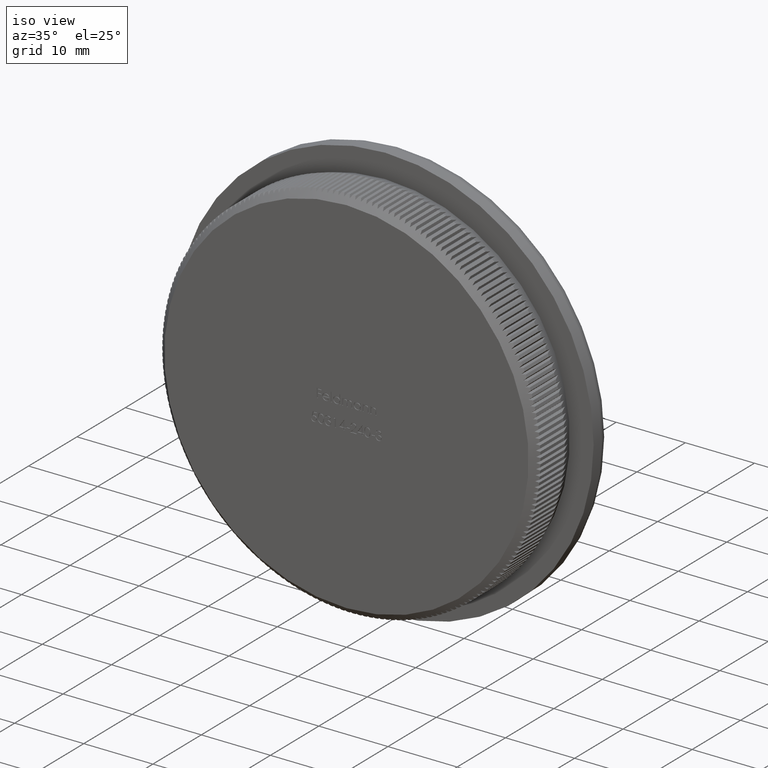
[diagram: clean part render]
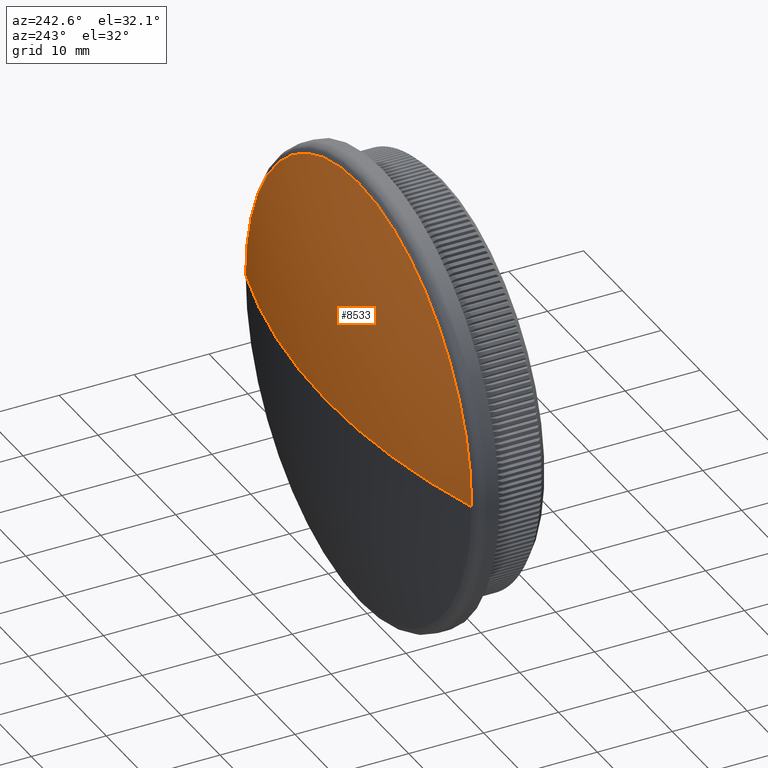
[diagram: tour spotlight — one face highlighted and labeled with its STEP entity id]
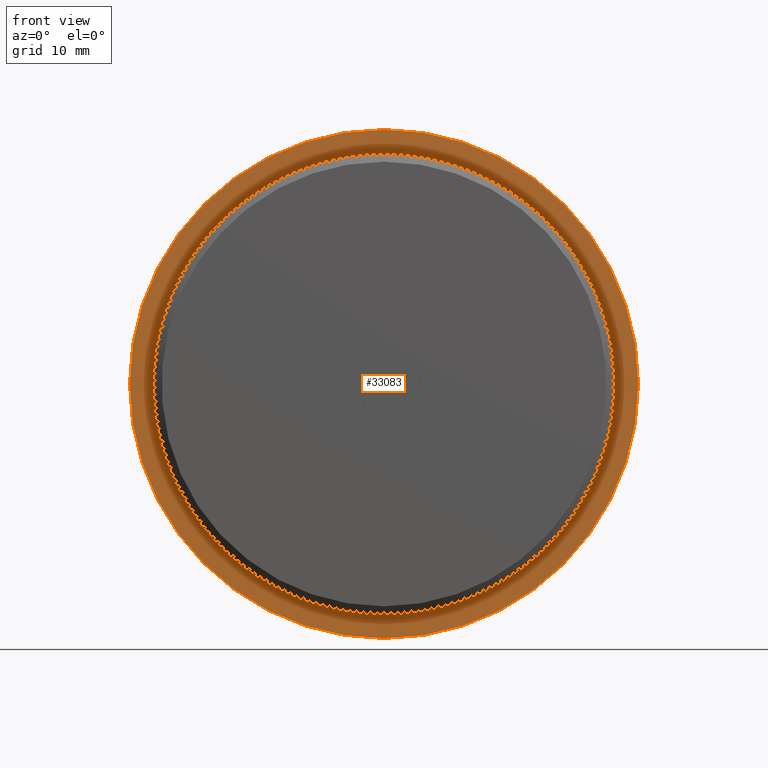
[diagram: tour spotlight — one face highlighted and labeled with its STEP entity id]
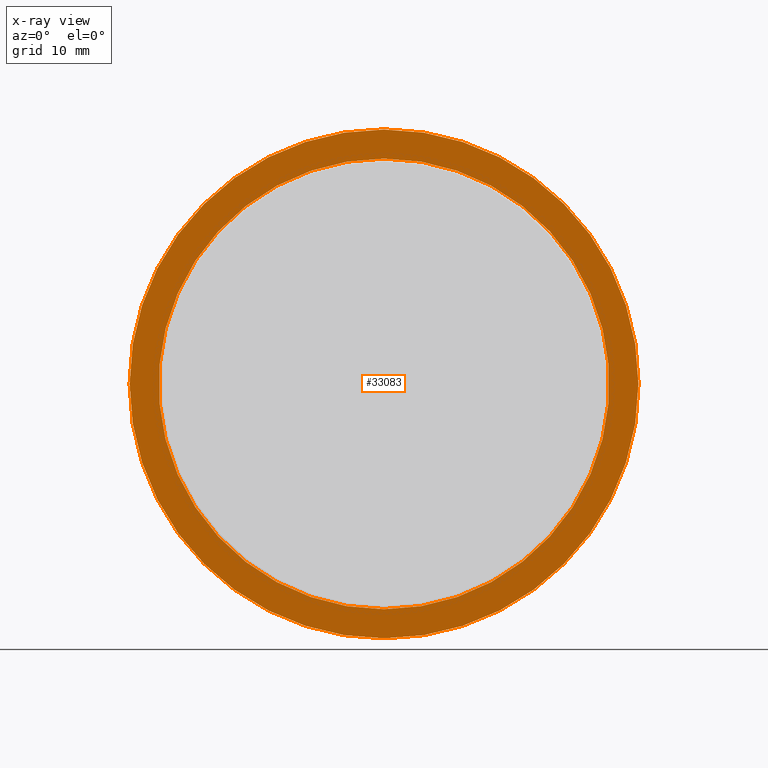
[diagram: x-ray of the same camera — body ghosted, this tour face saturated]
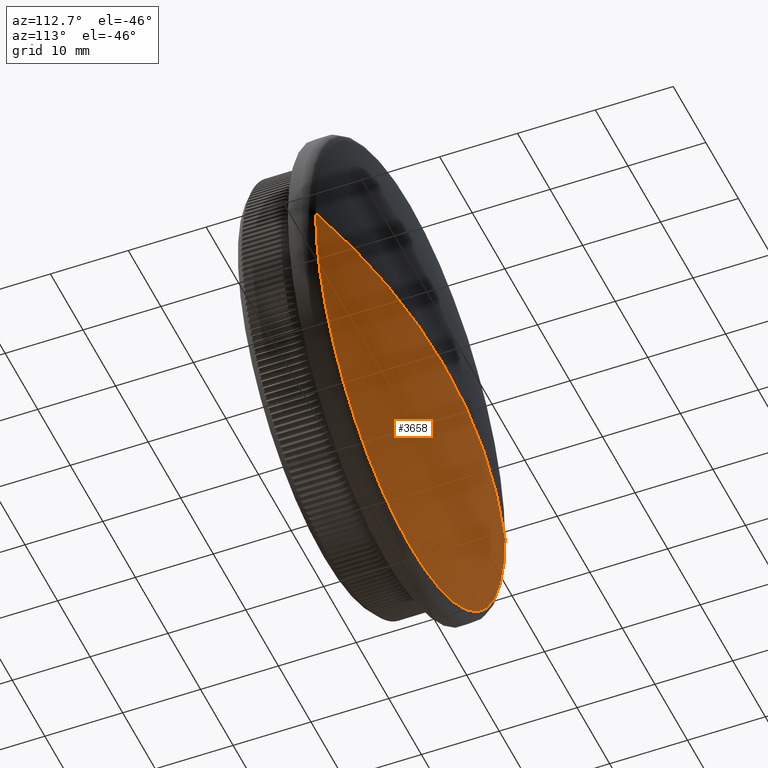
[diagram: tour spotlight — one face highlighted and labeled with its STEP entity id]
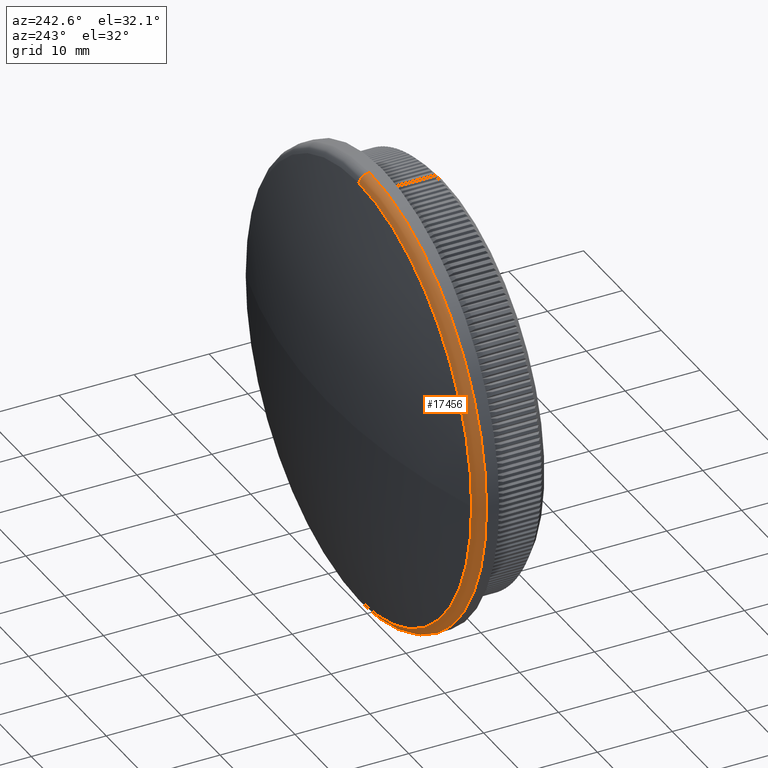
[diagram: tour spotlight — one face highlighted and labeled with its STEP entity id]
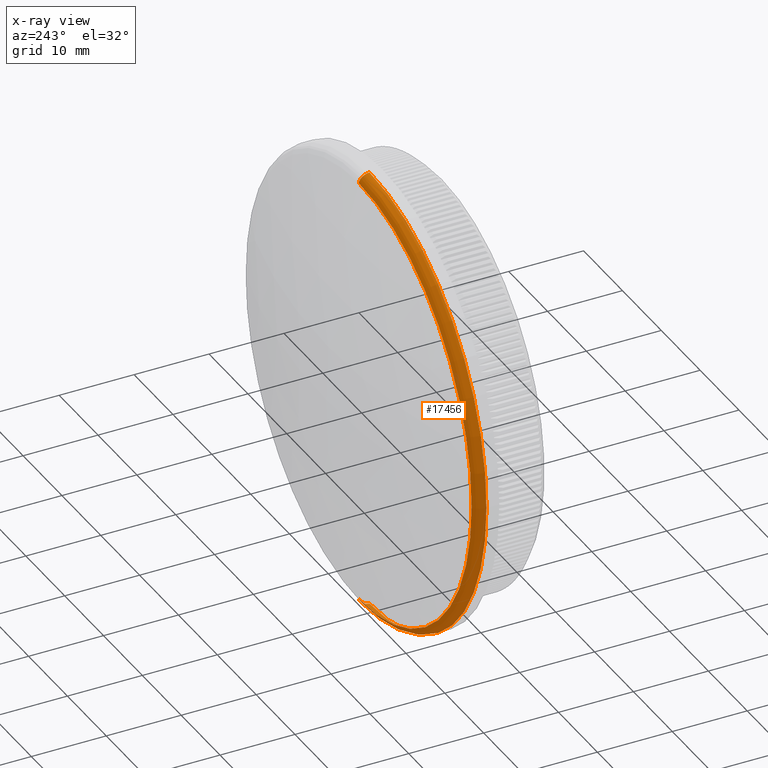
[diagram: x-ray of the same camera — body ghosted, this tour face saturated]
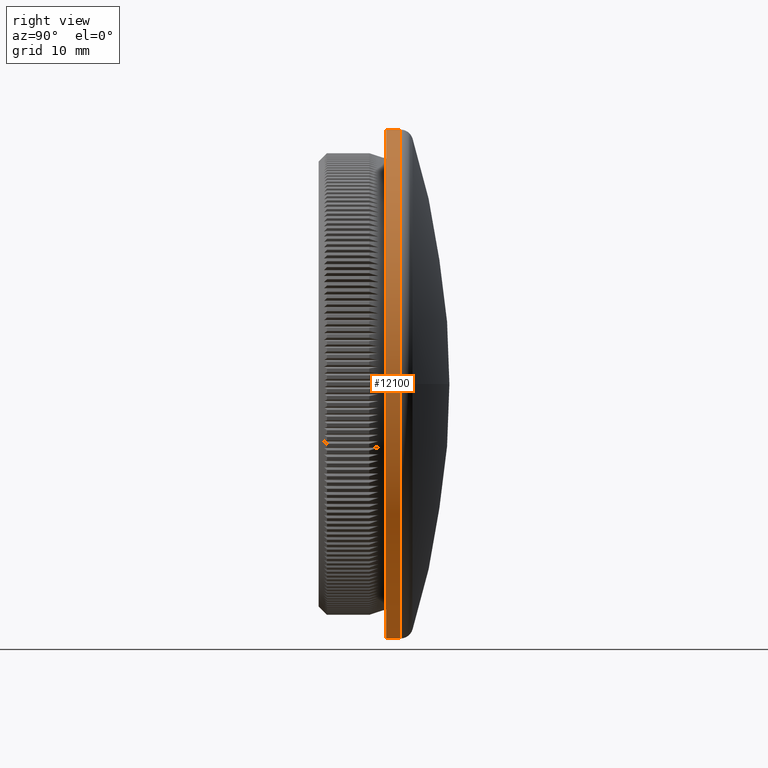
[diagram: tour spotlight — one face highlighted and labeled with its STEP entity id]
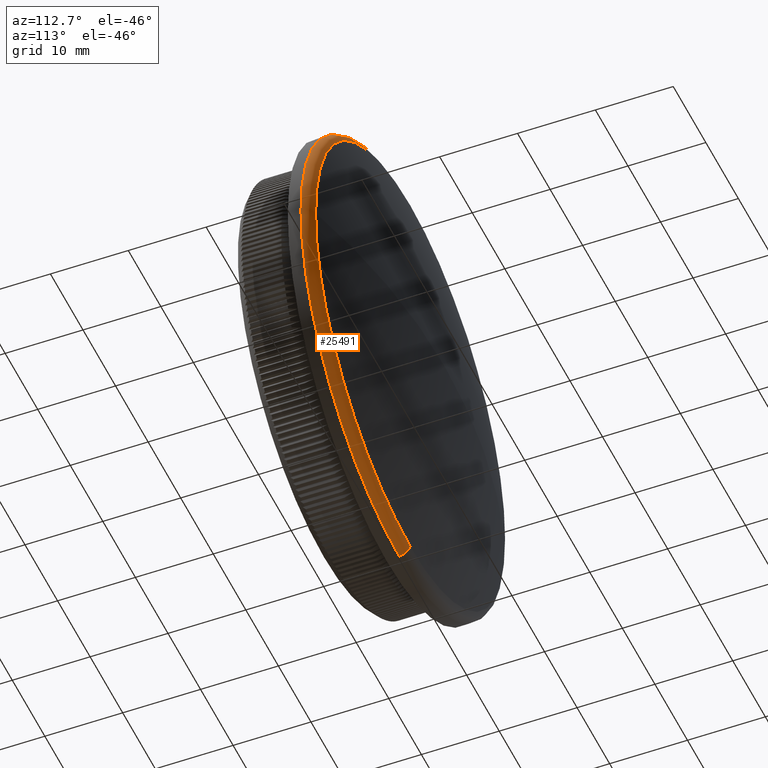
[diagram: tour spotlight — one face highlighted and labeled with its STEP entity id]
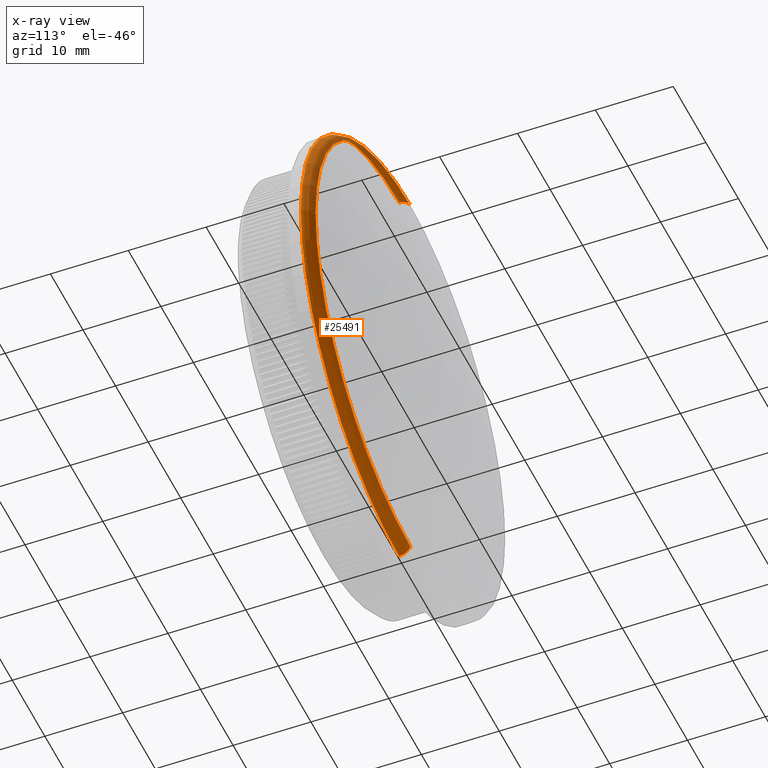
[diagram: x-ray of the same camera — body ghosted, this tour face saturated]
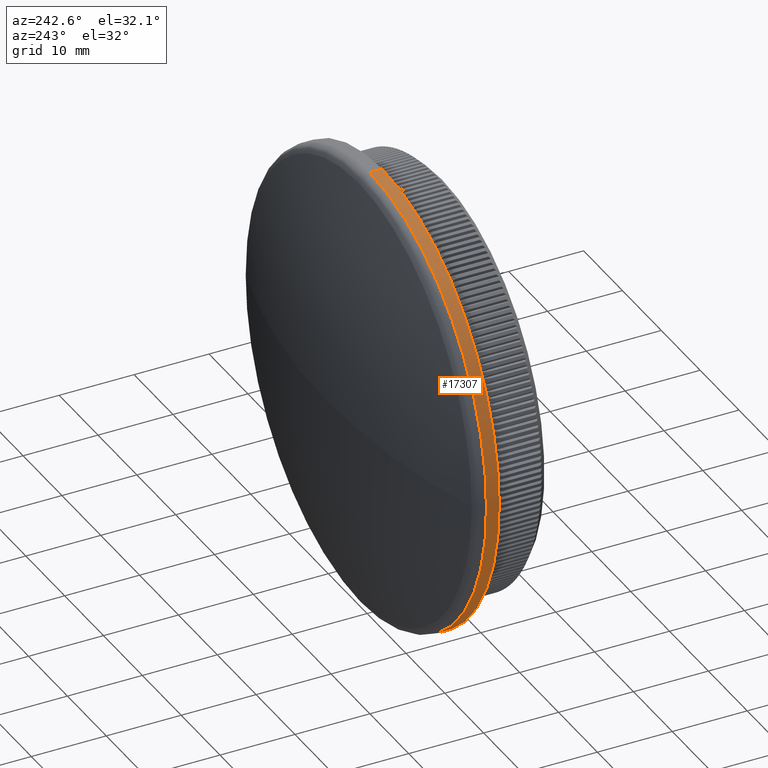
[diagram: tour spotlight — one face highlighted and labeled with its STEP entity id]
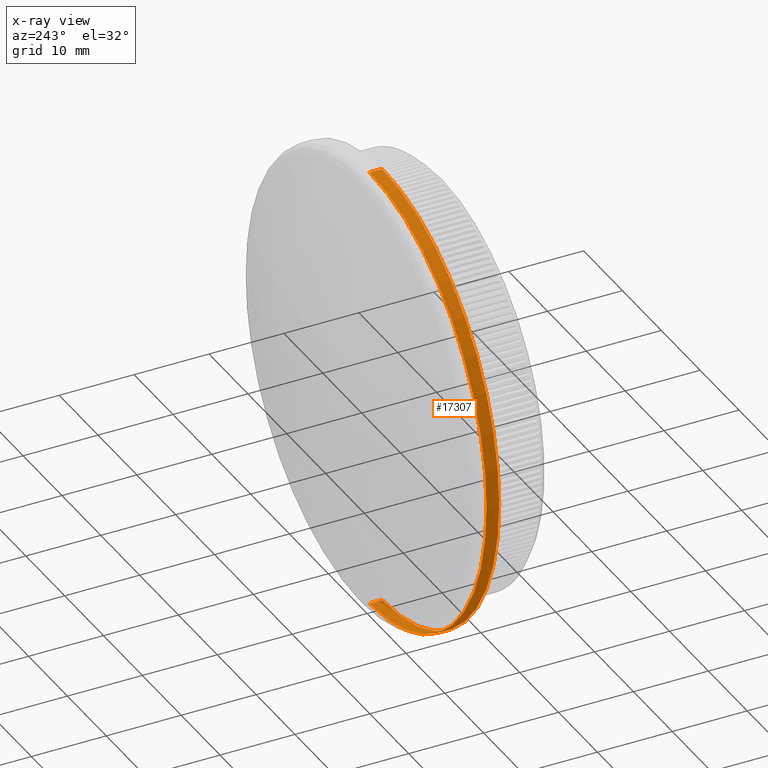
[diagram: x-ray of the same camera — body ghosted, this tour face saturated]
A machine part: a face-by-face anatomy tour. The part has 888 B-rep faces; the first image is the clean iso view, then the 7 largest visible faces are spotlighted one at a time (largest first), each with its STEP entity span.

Face 1 — auxiliary view, entity #8533. In plain terms, the highlighted spherical surface has radius 99.0545 mm.
Definition (entity closure, byte-faithful):
#365 = DIRECTION ( 'NONE',  ( 1.000000000000000000, 0.000000000000000000, -1.224646799147353207E-16 ) ) ;
#477 = CARTESIAN_POINT ( 'NONE',  ( 0.000000000000000000, -83.55452127659575012, 0.000000000000000000 ) ) ;
#2044 = AXIS2_PLACEMENT_3D ( 'NONE', #477, #27899, #365 ) ;
#2359 = DIRECTION ( 'NONE',  ( 1.000000000000000000, 0.000000000000000000, 0.000000000000000000 ) ) ;
#3018 = CARTESIAN_POINT ( 'NONE',  ( 29.09052289363562593, 11.13201241806655695, 0.000000000000000000 ) ) ;
#3180 = VERTEX_POINT ( 'NONE', #16944 ) ;
#4441 = DIRECTION ( 'NONE',  ( -1.000000000000000000, 0.000000000000000000, 0.000000000000000000 ) ) ;
#5966 = CARTESIAN_POINT ( 'NONE',  ( -29.09052289363562593, 11.13201241806655695, 3.562561574721366206E-15 ) ) ;
#6237 = ORIENTED_EDGE ( 'NONE', *, *, #19477, .F. ) ;
#7123 = DIRECTION ( 'NONE',  ( 0.000000000000000000, 0.000000000000000000, -1.000000000000000000 ) ) ;
#8533 = ADVANCED_FACE ( 'NONE', ( #28579 ), #24648, .T. ) ;
#8975 = CIRCLE ( 'NONE', #22452, 99.05452127659575012 ) ;
#10406 = VERTEX_POINT ( 'NONE', #30107 ) ;
#11011 = VERTEX_POINT ( 'NONE', #3018 ) ;
#11462 = AXIS2_PLACEMENT_3D ( 'NONE', #35562, #35792, #2359 ) ;
#11599 = CARTESIAN_POINT ( 'NONE',  ( 0.000000000000000000, 11.13201241806654984, 0.000000000000000000 ) ) ;
#12870 = CARTESIAN_POINT ( 'NONE',  ( 0.000000000000000000, 11.13201241806654984, 0.000000000000000000 ) ) ;
#16944 = CARTESIAN_POINT ( 'NONE',  ( 3.627435837075313568E-15, 11.13201241806654984, 29.09052289363557975 ) ) ;
#18086 = EDGE_LOOP ( 'NONE', ( #6237, #33534, #32876, #28919 ) ) ;
#19477 = EDGE_CURVE ( 'NONE', #10406, #11011, #8975, .T. ) ;
#20306 = VERTEX_POINT ( 'NONE', #5966 ) ;
#20692 = CIRCLE ( 'NONE', #30017, 29.09052289363557975 ) ;
#22452 = AXIS2_PLACEMENT_3D ( 'NONE', #29434, #7123, #4441 ) ;
#24648 = SPHERICAL_SURFACE ( 'NONE', #11462, 99.05452127659575012 ) ;
#25689 = DIRECTION ( 'NONE',  ( 0.000000000000000000, 0.000000000000000000, -1.000000000000000000 ) ) ;
#27899 = DIRECTION ( 'NONE',  ( 1.224646799147353207E-16, -0.000000000000000000, 1.000000000000000000 ) ) ;
#28579 = FACE_OUTER_BOUND ( 'NONE', #18086, .T. ) ;
#28919 = ORIENTED_EDGE ( 'NONE', *, *, #31478, .T. ) ;
#29434 = CARTESIAN_POINT ( 'NONE',  ( 0.000000000000000000, -83.55452127659575012, 0.000000000000000000 ) ) ;
#29826 = CIRCLE ( 'NONE', #2044, 99.05452127659575012 ) ;
#30017 = AXIS2_PLACEMENT_3D ( 'NONE', #11599, #33943, #25689 ) ;
#30107 = CARTESIAN_POINT ( 'NONE',  ( 6.065340121122818902E-15, 15.50000000000000000, 0.000000000000000000 ) ) ;
#31389 = EDGE_CURVE ( 'NONE', #10406, #20306, #29826, .T. ) ;
#31414 = CIRCLE ( 'NONE', #32816, 29.09052289363557975 ) ;
#31478 = EDGE_CURVE ( 'NONE', #3180, #11011, #20692, .T. ) ;
#32045 = DIRECTION ( 'NONE',  ( 0.000000000000000000, 1.000000000000000000, 0.000000000000000000 ) ) ;
#32284 = DIRECTION ( 'NONE',  ( 0.000000000000000000, 0.000000000000000000, -1.000000000000000000 ) ) ;
#32816 = AXIS2_PLACEMENT_3D ( 'NONE', #12870, #32045, #32284 ) ;
#32876 = ORIENTED_EDGE ( 'NONE', *, *, #34352, .T. ) ;
#33534 = ORIENTED_EDGE ( 'NONE', *, *, #31389, .T. ) ;
#33943 = DIRECTION ( 'NONE',  ( 0.000000000000000000, 1.000000000000000000, 0.000000000000000000 ) ) ;
#34352 = EDGE_CURVE ( 'NONE', #20306, #3180, #31414, .T. ) ;
#35562 = CARTESIAN_POINT ( 'NONE',  ( 0.000000000000000000, -83.55452127659575012, 0.000000000000000000 ) ) ;
#35792 = DIRECTION ( 'NONE',  ( 0.000000000000000000, 0.000000000000000000, 1.000000000000000000 ) ) ;

Face 2 — front view, entity #33083. An x-ray twin of the same camera follows (body ghosted, this face saturated) — the face is partly hidden behind the body. In plain terms, the highlighted planar face has unit normal (0, -1, -0).
Definition (entity closure, byte-faithful):
#1092 = VERTEX_POINT ( 'NONE', #1197 ) ;
#1197 = CARTESIAN_POINT ( 'NONE',  ( 0.000000000000000000, 8.000000000000000000, -26.70000000000000284 ) ) ;
#1554 = CARTESIAN_POINT ( 'NONE',  ( 26.70000000000000284, 8.000000000000000000, 0.000000000000000000 ) ) ;
#1641 = ORIENTED_EDGE ( 'NONE', *, *, #15414, .F. ) ;
#1807 = VERTEX_POINT ( 'NONE', #18245 ) ;
#2401 = CARTESIAN_POINT ( 'NONE',  ( 0.000000000000000000, 8.000000000000000000, 0.000000000000000000 ) ) ;
#4901 = EDGE_CURVE ( 'NONE', #1807, #25417, #24835, .T. ) ;
#5327 = DIRECTION ( 'NONE',  ( 0.000000000000000000, 0.000000000000000000, -1.000000000000000000 ) ) ;
#5513 = CIRCLE ( 'NONE', #21528, 30.14999999999999858 ) ;
#7878 = ORIENTED_EDGE ( 'NONE', *, *, #27525, .F. ) ;
#7944 = CARTESIAN_POINT ( 'NONE',  ( 0.000000000000000000, 8.000000000000000000, 0.000000000000000000 ) ) ;
#10017 = DIRECTION ( 'NONE',  ( 0.000000000000000000, 0.000000000000000000, -1.000000000000000000 ) ) ;
#10717 = DIRECTION ( 'NONE',  ( 0.000000000000000000, 0.000000000000000000, -1.000000000000000000 ) ) ;
#10763 = AXIS2_PLACEMENT_3D ( 'NONE', #7944, #27348, #10717 ) ;
#10950 = CARTESIAN_POINT ( 'NONE',  ( 3.309607974695722270E-15, 8.000000000000000000, 26.70000000000000284 ) ) ;
#11221 = EDGE_CURVE ( 'NONE', #25417, #1807, #5513, .T. ) ;
#12564 = PLANE ( 'NONE',  #26288 ) ;
#12808 = DIRECTION ( 'NONE',  ( -0.000000000000000000, -1.000000000000000000, -0.000000000000000000 ) ) ;
#13047 = DIRECTION ( 'NONE',  ( 0.000000000000000000, 0.000000000000000000, -1.000000000000000000 ) ) ;
#13644 = DIRECTION ( 'NONE',  ( -0.000000000000000000, -1.000000000000000000, -0.000000000000000000 ) ) ;
#13968 = AXIS2_PLACEMENT_3D ( 'NONE', #2401, #13644, #5327 ) ;
#14102 = FACE_OUTER_BOUND ( 'NONE', #18719, .T. ) ;
#15414 = EDGE_CURVE ( 'NONE', #20931, #1092, #32632, .T. ) ;
#15479 = DIRECTION ( 'NONE',  ( 0.000000000000000000, -1.000000000000000000, -0.000000000000000000 ) ) ;
#15839 = CARTESIAN_POINT ( 'NONE',  ( 0.000000000000000000, 8.000000000000000000, 0.000000000000000000 ) ) ;
#17075 = CARTESIAN_POINT ( 'NONE',  ( 0.000000000000000000, 8.000000000000000000, -30.14999999999999858 ) ) ;
#18245 = CARTESIAN_POINT ( 'NONE',  ( 3.692310099429270397E-15, 8.000000000000000000, 30.15000000000000213 ) ) ;
#18268 = CARTESIAN_POINT ( 'NONE',  ( 0.000000000000000000, 8.000000000000000000, 0.000000000000000000 ) ) ;
#18719 = EDGE_LOOP ( 'NONE', ( #19070, #33036 ) ) ;
#19070 = ORIENTED_EDGE ( 'NONE', *, *, #11221, .T. ) ;
#20931 = VERTEX_POINT ( 'NONE', #10950 ) ;
#21069 = DIRECTION ( 'NONE',  ( 0.000000000000000000, 0.000000000000000000, -1.000000000000000000 ) ) ;
#21528 = AXIS2_PLACEMENT_3D ( 'NONE', #18268, #34521, #10017 ) ;
#24835 = CIRCLE ( 'NONE', #13968, 30.14999999999999858 ) ;
#25086 = CIRCLE ( 'NONE', #35635, 26.70000000000000284 ) ;
#25417 = VERTEX_POINT ( 'NONE', #17075 ) ;
#26288 = AXIS2_PLACEMENT_3D ( 'NONE', #1554, #15479, #13047 ) ;
#27348 = DIRECTION ( 'NONE',  ( -0.000000000000000000, -1.000000000000000000, -0.000000000000000000 ) ) ;
#27525 = EDGE_CURVE ( 'NONE', #1092, #20931, #25086, .T. ) ;
#30272 = EDGE_LOOP ( 'NONE', ( #7878, #1641 ) ) ;
#31899 = FACE_BOUND ( 'NONE', #30272, .T. ) ;
#32632 = CIRCLE ( 'NONE', #10763, 26.70000000000000284 ) ;
#33036 = ORIENTED_EDGE ( 'NONE', *, *, #4901, .T. ) ;
#33083 = ADVANCED_FACE ( 'NONE', ( #14102, #31899 ), #12564, .T. ) ;
#34521 = DIRECTION ( 'NONE',  ( -0.000000000000000000, -1.000000000000000000, -0.000000000000000000 ) ) ;
#35635 = AXIS2_PLACEMENT_3D ( 'NONE', #15839, #12808, #21069 ) ;

Face 3 — auxiliary view, entity #3658. In plain terms, the highlighted spherical surface has radius 99.0545 mm.
Definition (entity closure, byte-faithful):
#365 = DIRECTION ( 'NONE',  ( 1.000000000000000000, 0.000000000000000000, -1.224646799147353207E-16 ) ) ;
#477 = CARTESIAN_POINT ( 'NONE',  ( 0.000000000000000000, -83.55452127659575012, 0.000000000000000000 ) ) ;
#1938 = SPHERICAL_SURFACE ( 'NONE', #3744, 99.05452127659575012 ) ;
#2015 = VERTEX_POINT ( 'NONE', #19440 ) ;
#2044 = AXIS2_PLACEMENT_3D ( 'NONE', #477, #27899, #365 ) ;
#3018 = CARTESIAN_POINT ( 'NONE',  ( 29.09052289363562593, 11.13201241806655695, 0.000000000000000000 ) ) ;
#3230 = DIRECTION ( 'NONE',  ( 1.000000000000000000, 0.000000000000000000, 0.000000000000000000 ) ) ;
#3658 = ADVANCED_FACE ( 'NONE', ( #18427 ), #1938, .T. ) ;
#3744 = AXIS2_PLACEMENT_3D ( 'NONE', #25394, #19962, #3230 ) ;
#4256 = ORIENTED_EDGE ( 'NONE', *, *, #31389, .F. ) ;
#4441 = DIRECTION ( 'NONE',  ( -1.000000000000000000, 0.000000000000000000, 0.000000000000000000 ) ) ;
#5054 = CIRCLE ( 'NONE', #5511, 29.09052289363557975 ) ;
#5511 = AXIS2_PLACEMENT_3D ( 'NONE', #31655, #9337, #9583 ) ;
#5966 = CARTESIAN_POINT ( 'NONE',  ( -29.09052289363562593, 11.13201241806655695, 3.562561574721366206E-15 ) ) ;
#7123 = DIRECTION ( 'NONE',  ( 0.000000000000000000, 0.000000000000000000, -1.000000000000000000 ) ) ;
#7298 = AXIS2_PLACEMENT_3D ( 'NONE', #16185, #30155, #35601 ) ;
#7791 = ORIENTED_EDGE ( 'NONE', *, *, #19477, .T. ) ;
#8975 = CIRCLE ( 'NONE', #22452, 99.05452127659575012 ) ;
#9337 = DIRECTION ( 'NONE',  ( 0.000000000000000000, 1.000000000000000000, 0.000000000000000000 ) ) ;
#9583 = DIRECTION ( 'NONE',  ( 0.000000000000000000, 0.000000000000000000, -1.000000000000000000 ) ) ;
#10406 = VERTEX_POINT ( 'NONE', #30107 ) ;
#10749 = EDGE_CURVE ( 'NONE', #2015, #20306, #5054, .T. ) ;
#11011 = VERTEX_POINT ( 'NONE', #3018 ) ;
#15147 = CIRCLE ( 'NONE', #7298, 29.09052289363557975 ) ;
#16185 = CARTESIAN_POINT ( 'NONE',  ( 0.000000000000000000, 11.13201241806654984, 0.000000000000000000 ) ) ;
#18427 = FACE_OUTER_BOUND ( 'NONE', #18727, .T. ) ;
#18727 = EDGE_LOOP ( 'NONE', ( #4256, #7791, #27350, #20390 ) ) ;
#19440 = CARTESIAN_POINT ( 'NONE',  ( 0.000000000000000000, 11.13201241806654984, -29.09052289363557975 ) ) ;
#19477 = EDGE_CURVE ( 'NONE', #10406, #11011, #8975, .T. ) ;
#19962 = DIRECTION ( 'NONE',  ( 0.000000000000000000, 0.000000000000000000, 1.000000000000000000 ) ) ;
#20306 = VERTEX_POINT ( 'NONE', #5966 ) ;
#20390 = ORIENTED_EDGE ( 'NONE', *, *, #10749, .T. ) ;
#22452 = AXIS2_PLACEMENT_3D ( 'NONE', #29434, #7123, #4441 ) ;
#25394 = CARTESIAN_POINT ( 'NONE',  ( 0.000000000000000000, -83.55452127659575012, 0.000000000000000000 ) ) ;
#26351 = EDGE_CURVE ( 'NONE', #11011, #2015, #15147, .T. ) ;
#27350 = ORIENTED_EDGE ( 'NONE', *, *, #26351, .T. ) ;
#27899 = DIRECTION ( 'NONE',  ( 1.224646799147353207E-16, -0.000000000000000000, 1.000000000000000000 ) ) ;
#29434 = CARTESIAN_POINT ( 'NONE',  ( 0.000000000000000000, -83.55452127659575012, 0.000000000000000000 ) ) ;
#29826 = CIRCLE ( 'NONE', #2044, 99.05452127659575012 ) ;
#30107 = CARTESIAN_POINT ( 'NONE',  ( 6.065340121122818902E-15, 15.50000000000000000, 0.000000000000000000 ) ) ;
#30155 = DIRECTION ( 'NONE',  ( 0.000000000000000000, 1.000000000000000000, 0.000000000000000000 ) ) ;
#31389 = EDGE_CURVE ( 'NONE', #10406, #20306, #29826, .T. ) ;
#31655 = CARTESIAN_POINT ( 'NONE',  ( 0.000000000000000000, 11.13201241806654984, 0.000000000000000000 ) ) ;
#35601 = DIRECTION ( 'NONE',  ( 0.000000000000000000, 0.000000000000000000, -1.000000000000000000 ) ) ;

Face 4 — auxiliary view, entity #17456. An x-ray twin of the same camera follows (body ghosted, this face saturated) — the face is partly hidden behind the body. In plain terms, the highlighted toroidal blend (fillet) surface has major radius 28.65 mm and minor (blend) radius 1.5 mm.
Definition (entity closure, byte-faithful):
#1167 = ORIENTED_EDGE ( 'NONE', *, *, #34352, .F. ) ;
#1193 = AXIS2_PLACEMENT_3D ( 'NONE', #8161, #27935, #2477 ) ;
#2015 = VERTEX_POINT ( 'NONE', #19440 ) ;
#2205 = TOROIDAL_SURFACE ( 'NONE', #29451, 28.64999999999999503, 1.500000000000000000 ) ;
#2391 = CARTESIAN_POINT ( 'NONE',  ( 3.692310099429269608E-15, 9.698157620612199992, 30.14999999999999503 ) ) ;
#2477 = DIRECTION ( 'NONE',  ( -1.224646799147351975E-16, 0.000000000000000000, -1.000000000000000000 ) ) ;
#3180 = VERTEX_POINT ( 'NONE', #16944 ) ;
#3579 = VERTEX_POINT ( 'NONE', #2391 ) ;
#4056 = EDGE_CURVE ( 'NONE', #3180, #3579, #14460, .T. ) ;
#4841 = ORIENTED_EDGE ( 'NONE', *, *, #10749, .F. ) ;
#5054 = CIRCLE ( 'NONE', #5511, 29.09052289363557975 ) ;
#5511 = AXIS2_PLACEMENT_3D ( 'NONE', #31655, #9337, #9583 ) ;
#5655 = AXIS2_PLACEMENT_3D ( 'NONE', #33181, #16553, #7968 ) ;
#5966 = CARTESIAN_POINT ( 'NONE',  ( -29.09052289363562593, 11.13201241806655695, 3.562561574721366206E-15 ) ) ;
#6461 = EDGE_CURVE ( 'NONE', #2015, #21737, #7503, .T. ) ;
#6835 = DIRECTION ( 'NONE',  ( -0.000000000000000000, -1.000000000000000000, -0.000000000000000000 ) ) ;
#6866 = DIRECTION ( 'NONE',  ( 0.000000000000000000, 0.000000000000000000, -1.000000000000000000 ) ) ;
#7503 = CIRCLE ( 'NONE', #5655, 1.500000000000001332 ) ;
#7968 = DIRECTION ( 'NONE',  ( 0.000000000000000000, 0.000000000000000000, 1.000000000000000000 ) ) ;
#8161 = CARTESIAN_POINT ( 'NONE',  ( 3.508613079557166097E-15, 9.698157620612199992, 28.64999999999999503 ) ) ;
#8716 = AXIS2_PLACEMENT_3D ( 'NONE', #18135, #12412, #6866 ) ;
#9337 = DIRECTION ( 'NONE',  ( 0.000000000000000000, 1.000000000000000000, 0.000000000000000000 ) ) ;
#9583 = DIRECTION ( 'NONE',  ( 0.000000000000000000, 0.000000000000000000, -1.000000000000000000 ) ) ;
#9754 = EDGE_CURVE ( 'NONE', #3579, #21737, #30671, .T. ) ;
#10749 = EDGE_CURVE ( 'NONE', #2015, #20306, #5054, .T. ) ;
#11357 = ORIENTED_EDGE ( 'NONE', *, *, #6461, .T. ) ;
#12412 = DIRECTION ( 'NONE',  ( -0.000000000000000000, -1.000000000000000000, -0.000000000000000000 ) ) ;
#12870 = CARTESIAN_POINT ( 'NONE',  ( 0.000000000000000000, 11.13201241806654984, 0.000000000000000000 ) ) ;
#14460 = CIRCLE ( 'NONE', #1193, 1.500000000000001332 ) ;
#16553 = DIRECTION ( 'NONE',  ( -1.000000000000000000, 0.000000000000000000, 0.000000000000000000 ) ) ;
#16906 = ORIENTED_EDGE ( 'NONE', *, *, #9754, .F. ) ;
#16944 = CARTESIAN_POINT ( 'NONE',  ( 3.627435837075313568E-15, 11.13201241806654984, 29.09052289363557975 ) ) ;
#17456 = ADVANCED_FACE ( 'NONE', ( #29103 ), #2205, .T. ) ;
#17977 = DIRECTION ( 'NONE',  ( 0.000000000000000000, 0.000000000000000000, -1.000000000000000000 ) ) ;
#18135 = CARTESIAN_POINT ( 'NONE',  ( 0.000000000000000000, 9.698157620612199992, 0.000000000000000000 ) ) ;
#19440 = CARTESIAN_POINT ( 'NONE',  ( 0.000000000000000000, 11.13201241806654984, -29.09052289363557975 ) ) ;
#20306 = VERTEX_POINT ( 'NONE', #5966 ) ;
#20496 = ORIENTED_EDGE ( 'NONE', *, *, #4056, .F. ) ;
#20930 = CARTESIAN_POINT ( 'NONE',  ( 0.000000000000000000, 9.698157620612199992, -30.14999999999999503 ) ) ;
#20993 = CARTESIAN_POINT ( 'NONE',  ( 0.000000000000000000, 9.698157620612199992, 0.000000000000000000 ) ) ;
#21737 = VERTEX_POINT ( 'NONE', #20930 ) ;
#26138 = EDGE_LOOP ( 'NONE', ( #20496, #1167, #4841, #11357, #16906 ) ) ;
#27935 = DIRECTION ( 'NONE',  ( 1.000000000000000000, 0.000000000000000000, -1.224646799147352961E-16 ) ) ;
#29103 = FACE_OUTER_BOUND ( 'NONE', #26138, .T. ) ;
#29451 = AXIS2_PLACEMENT_3D ( 'NONE', #20993, #6835, #17977 ) ;
#30671 = CIRCLE ( 'NONE', #8716, 30.14999999999999503 ) ;
#31414 = CIRCLE ( 'NONE', #32816, 29.09052289363557975 ) ;
#31655 = CARTESIAN_POINT ( 'NONE',  ( 0.000000000000000000, 11.13201241806654984, 0.000000000000000000 ) ) ;
#32045 = DIRECTION ( 'NONE',  ( 0.000000000000000000, 1.000000000000000000, 0.000000000000000000 ) ) ;
#32284 = DIRECTION ( 'NONE',  ( 0.000000000000000000, 0.000000000000000000, -1.000000000000000000 ) ) ;
#32816 = AXIS2_PLACEMENT_3D ( 'NONE', #12870, #32045, #32284 ) ;
#33181 = CARTESIAN_POINT ( 'NONE',  ( 0.000000000000000000, 9.698157620612199992, -28.64999999999999503 ) ) ;
#34352 = EDGE_CURVE ( 'NONE', #20306, #3180, #31414, .T. ) ;

Face 5 — right view, entity #12100. In plain terms, the highlighted cylindrical surface (partial cylindrical patch) has radius 30.15 mm, axis along (-0, -1, -0).
Definition (entity closure, byte-faithful):
#1807 = VERTEX_POINT ( 'NONE', #18245 ) ;
#2212 = AXIS2_PLACEMENT_3D ( 'NONE', #18198, #21333, #21207 ) ;
#2391 = CARTESIAN_POINT ( 'NONE',  ( 3.692310099429269608E-15, 9.698157620612199992, 30.14999999999999503 ) ) ;
#2572 = CIRCLE ( 'NONE', #10777, 30.14999999999999503 ) ;
#2683 = EDGE_LOOP ( 'NONE', ( #20469, #30971, #8664, #19282 ) ) ;
#3001 = DIRECTION ( 'NONE',  ( 0.000000000000000000, 0.000000000000000000, -1.000000000000000000 ) ) ;
#3579 = VERTEX_POINT ( 'NONE', #2391 ) ;
#5513 = CIRCLE ( 'NONE', #21528, 30.14999999999999858 ) ;
#7490 = VECTOR ( 'NONE', #13766, 1000.000000000000000 ) ;
#7830 = EDGE_CURVE ( 'NONE', #21737, #3579, #2572, .T. ) ;
#8664 = ORIENTED_EDGE ( 'NONE', *, *, #11221, .F. ) ;
#10017 = DIRECTION ( 'NONE',  ( 0.000000000000000000, 0.000000000000000000, -1.000000000000000000 ) ) ;
#10777 = AXIS2_PLACEMENT_3D ( 'NONE', #11569, #16912, #3001 ) ;
#11221 = EDGE_CURVE ( 'NONE', #25417, #1807, #5513, .T. ) ;
#11569 = CARTESIAN_POINT ( 'NONE',  ( 0.000000000000000000, 9.698157620612199992, 0.000000000000000000 ) ) ;
#12100 = ADVANCED_FACE ( 'NONE', ( #27174 ), #18935, .T. ) ;
#13766 = DIRECTION ( 'NONE',  ( -0.000000000000000000, -1.000000000000000000, -0.000000000000000000 ) ) ;
#16327 = VECTOR ( 'NONE', #16518, 1000.000000000000000 ) ;
#16518 = DIRECTION ( 'NONE',  ( -0.000000000000000000, -1.000000000000000000, -0.000000000000000000 ) ) ;
#16912 = DIRECTION ( 'NONE',  ( -0.000000000000000000, -1.000000000000000000, -0.000000000000000000 ) ) ;
#17075 = CARTESIAN_POINT ( 'NONE',  ( 0.000000000000000000, 8.000000000000000000, -30.14999999999999858 ) ) ;
#17625 = LINE ( 'NONE', #32426, #16327 ) ;
#18198 = CARTESIAN_POINT ( 'NONE',  ( 0.000000000000000000, 0.000000000000000000, 0.000000000000000000 ) ) ;
#18245 = CARTESIAN_POINT ( 'NONE',  ( 3.692310099429270397E-15, 8.000000000000000000, 30.15000000000000213 ) ) ;
#18268 = CARTESIAN_POINT ( 'NONE',  ( 0.000000000000000000, 8.000000000000000000, 0.000000000000000000 ) ) ;
#18935 = CYLINDRICAL_SURFACE ( 'NONE', #2212, 30.14999999999999503 ) ;
#19282 = ORIENTED_EDGE ( 'NONE', *, *, #24370, .F. ) ;
#20469 = ORIENTED_EDGE ( 'NONE', *, *, #7830, .T. ) ;
#20930 = CARTESIAN_POINT ( 'NONE',  ( 0.000000000000000000, 9.698157620612199992, -30.14999999999999503 ) ) ;
#21207 = DIRECTION ( 'NONE',  ( 0.000000000000000000, 0.000000000000000000, -1.000000000000000000 ) ) ;
#21333 = DIRECTION ( 'NONE',  ( -0.000000000000000000, -1.000000000000000000, -0.000000000000000000 ) ) ;
#21528 = AXIS2_PLACEMENT_3D ( 'NONE', #18268, #34521, #10017 ) ;
#21737 = VERTEX_POINT ( 'NONE', #20930 ) ;
#24370 = EDGE_CURVE ( 'NONE', #21737, #25417, #33929, .T. ) ;
#25417 = VERTEX_POINT ( 'NONE', #17075 ) ;
#27174 = FACE_OUTER_BOUND ( 'NONE', #2683, .T. ) ;
#30971 = ORIENTED_EDGE ( 'NONE', *, *, #32243, .T. ) ;
#32243 = EDGE_CURVE ( 'NONE', #3579, #1807, #17625, .T. ) ;
#32426 = CARTESIAN_POINT ( 'NONE',  ( 3.692310099429269608E-15, 0.000000000000000000, 30.14999999999999503 ) ) ;
#33179 = CARTESIAN_POINT ( 'NONE',  ( 0.000000000000000000, 0.000000000000000000, -30.14999999999999503 ) ) ;
#33929 = LINE ( 'NONE', #33179, #7490 ) ;
#34521 = DIRECTION ( 'NONE',  ( -0.000000000000000000, -1.000000000000000000, -0.000000000000000000 ) ) ;

Face 6 — auxiliary view, entity #25491. An x-ray twin of the same camera follows (body ghosted, this face saturated) — the face is partly hidden behind the body. In plain terms, the highlighted toroidal blend (fillet) surface has major radius 28.65 mm and minor (blend) radius 1.5 mm.
Definition (entity closure, byte-faithful):
#726 = DIRECTION ( 'NONE',  ( 0.000000000000000000, 0.000000000000000000, -1.000000000000000000 ) ) ;
#1193 = AXIS2_PLACEMENT_3D ( 'NONE', #8161, #27935, #2477 ) ;
#2015 = VERTEX_POINT ( 'NONE', #19440 ) ;
#2391 = CARTESIAN_POINT ( 'NONE',  ( 3.692310099429269608E-15, 9.698157620612199992, 30.14999999999999503 ) ) ;
#2477 = DIRECTION ( 'NONE',  ( -1.224646799147351975E-16, 0.000000000000000000, -1.000000000000000000 ) ) ;
#2572 = CIRCLE ( 'NONE', #10777, 30.14999999999999503 ) ;
#3001 = DIRECTION ( 'NONE',  ( 0.000000000000000000, 0.000000000000000000, -1.000000000000000000 ) ) ;
#3018 = CARTESIAN_POINT ( 'NONE',  ( 29.09052289363562593, 11.13201241806655695, 0.000000000000000000 ) ) ;
#3180 = VERTEX_POINT ( 'NONE', #16944 ) ;
#3499 = ORIENTED_EDGE ( 'NONE', *, *, #31478, .F. ) ;
#3579 = VERTEX_POINT ( 'NONE', #2391 ) ;
#4056 = EDGE_CURVE ( 'NONE', #3180, #3579, #14460, .T. ) ;
#5655 = AXIS2_PLACEMENT_3D ( 'NONE', #33181, #16553, #7968 ) ;
#6188 = CARTESIAN_POINT ( 'NONE',  ( 0.000000000000000000, 9.698157620612199992, 0.000000000000000000 ) ) ;
#6461 = EDGE_CURVE ( 'NONE', #2015, #21737, #7503, .T. ) ;
#7298 = AXIS2_PLACEMENT_3D ( 'NONE', #16185, #30155, #35601 ) ;
#7503 = CIRCLE ( 'NONE', #5655, 1.500000000000001332 ) ;
#7830 = EDGE_CURVE ( 'NONE', #21737, #3579, #2572, .T. ) ;
#7968 = DIRECTION ( 'NONE',  ( 0.000000000000000000, 0.000000000000000000, 1.000000000000000000 ) ) ;
#8161 = CARTESIAN_POINT ( 'NONE',  ( 3.508613079557166097E-15, 9.698157620612199992, 28.64999999999999503 ) ) ;
#8876 = AXIS2_PLACEMENT_3D ( 'NONE', #6188, #20247, #726 ) ;
#10777 = AXIS2_PLACEMENT_3D ( 'NONE', #11569, #16912, #3001 ) ;
#10806 = ORIENTED_EDGE ( 'NONE', *, *, #4056, .T. ) ;
#11011 = VERTEX_POINT ( 'NONE', #3018 ) ;
#11554 = ORIENTED_EDGE ( 'NONE', *, *, #7830, .F. ) ;
#11569 = CARTESIAN_POINT ( 'NONE',  ( 0.000000000000000000, 9.698157620612199992, 0.000000000000000000 ) ) ;
#11599 = CARTESIAN_POINT ( 'NONE',  ( 0.000000000000000000, 11.13201241806654984, 0.000000000000000000 ) ) ;
#11737 = FACE_OUTER_BOUND ( 'NONE', #19420, .T. ) ;
#14460 = CIRCLE ( 'NONE', #1193, 1.500000000000001332 ) ;
#14735 = ORIENTED_EDGE ( 'NONE', *, *, #26351, .F. ) ;
#15147 = CIRCLE ( 'NONE', #7298, 29.09052289363557975 ) ;
#15629 = TOROIDAL_SURFACE ( 'NONE', #8876, 28.64999999999999503, 1.500000000000000000 ) ;
#16185 = CARTESIAN_POINT ( 'NONE',  ( 0.000000000000000000, 11.13201241806654984, 0.000000000000000000 ) ) ;
#16553 = DIRECTION ( 'NONE',  ( -1.000000000000000000, 0.000000000000000000, 0.000000000000000000 ) ) ;
#16912 = DIRECTION ( 'NONE',  ( -0.000000000000000000, -1.000000000000000000, -0.000000000000000000 ) ) ;
#16944 = CARTESIAN_POINT ( 'NONE',  ( 3.627435837075313568E-15, 11.13201241806654984, 29.09052289363557975 ) ) ;
#19420 = EDGE_LOOP ( 'NONE', ( #3499, #10806, #11554, #19951, #14735 ) ) ;
#19440 = CARTESIAN_POINT ( 'NONE',  ( 0.000000000000000000, 11.13201241806654984, -29.09052289363557975 ) ) ;
#19951 = ORIENTED_EDGE ( 'NONE', *, *, #6461, .F. ) ;
#20247 = DIRECTION ( 'NONE',  ( -0.000000000000000000, -1.000000000000000000, -0.000000000000000000 ) ) ;
#20692 = CIRCLE ( 'NONE', #30017, 29.09052289363557975 ) ;
#20930 = CARTESIAN_POINT ( 'NONE',  ( 0.000000000000000000, 9.698157620612199992, -30.14999999999999503 ) ) ;
#21737 = VERTEX_POINT ( 'NONE', #20930 ) ;
#25491 = ADVANCED_FACE ( 'NONE', ( #11737 ), #15629, .T. ) ;
#25689 = DIRECTION ( 'NONE',  ( 0.000000000000000000, 0.000000000000000000, -1.000000000000000000 ) ) ;
#26351 = EDGE_CURVE ( 'NONE', #11011, #2015, #15147, .T. ) ;
#27935 = DIRECTION ( 'NONE',  ( 1.000000000000000000, 0.000000000000000000, -1.224646799147352961E-16 ) ) ;
#30017 = AXIS2_PLACEMENT_3D ( 'NONE', #11599, #33943, #25689 ) ;
#30155 = DIRECTION ( 'NONE',  ( 0.000000000000000000, 1.000000000000000000, 0.000000000000000000 ) ) ;
#31478 = EDGE_CURVE ( 'NONE', #3180, #11011, #20692, .T. ) ;
#33181 = CARTESIAN_POINT ( 'NONE',  ( 0.000000000000000000, 9.698157620612199992, -28.64999999999999503 ) ) ;
#33943 = DIRECTION ( 'NONE',  ( 0.000000000000000000, 1.000000000000000000, 0.000000000000000000 ) ) ;
#35601 = DIRECTION ( 'NONE',  ( 0.000000000000000000, 0.000000000000000000, -1.000000000000000000 ) ) ;

Face 7 — auxiliary view, entity #17307. An x-ray twin of the same camera follows (body ghosted, this face saturated) — the face is partly hidden behind the body. In plain terms, the highlighted cylindrical surface (partial cylindrical patch) has radius 30.15 mm, axis along (-0, -1, -0).
Definition (entity closure, byte-faithful):
#808 = ORIENTED_EDGE ( 'NONE', *, *, #24370, .T. ) ;
#1807 = VERTEX_POINT ( 'NONE', #18245 ) ;
#2391 = CARTESIAN_POINT ( 'NONE',  ( 3.692310099429269608E-15, 9.698157620612199992, 30.14999999999999503 ) ) ;
#2401 = CARTESIAN_POINT ( 'NONE',  ( 0.000000000000000000, 8.000000000000000000, 0.000000000000000000 ) ) ;
#3579 = VERTEX_POINT ( 'NONE', #2391 ) ;
#4901 = EDGE_CURVE ( 'NONE', #1807, #25417, #24835, .T. ) ;
#5327 = DIRECTION ( 'NONE',  ( 0.000000000000000000, 0.000000000000000000, -1.000000000000000000 ) ) ;
#6866 = DIRECTION ( 'NONE',  ( 0.000000000000000000, 0.000000000000000000, -1.000000000000000000 ) ) ;
#7490 = VECTOR ( 'NONE', #13766, 1000.000000000000000 ) ;
#8716 = AXIS2_PLACEMENT_3D ( 'NONE', #18135, #12412, #6866 ) ;
#9128 = DIRECTION ( 'NONE',  ( 0.000000000000000000, 0.000000000000000000, -1.000000000000000000 ) ) ;
#9473 = AXIS2_PLACEMENT_3D ( 'NONE', #19575, #34356, #9128 ) ;
#9754 = EDGE_CURVE ( 'NONE', #3579, #21737, #30671, .T. ) ;
#12149 = FACE_OUTER_BOUND ( 'NONE', #17888, .T. ) ;
#12412 = DIRECTION ( 'NONE',  ( -0.000000000000000000, -1.000000000000000000, -0.000000000000000000 ) ) ;
#13644 = DIRECTION ( 'NONE',  ( -0.000000000000000000, -1.000000000000000000, -0.000000000000000000 ) ) ;
#13766 = DIRECTION ( 'NONE',  ( -0.000000000000000000, -1.000000000000000000, -0.000000000000000000 ) ) ;
#13968 = AXIS2_PLACEMENT_3D ( 'NONE', #2401, #13644, #5327 ) ;
#16327 = VECTOR ( 'NONE', #16518, 1000.000000000000000 ) ;
#16518 = DIRECTION ( 'NONE',  ( -0.000000000000000000, -1.000000000000000000, -0.000000000000000000 ) ) ;
#17075 = CARTESIAN_POINT ( 'NONE',  ( 0.000000000000000000, 8.000000000000000000, -30.14999999999999858 ) ) ;
#17307 = ADVANCED_FACE ( 'NONE', ( #12149 ), #33859, .T. ) ;
#17625 = LINE ( 'NONE', #32426, #16327 ) ;
#17888 = EDGE_LOOP ( 'NONE', ( #19925, #31280, #808, #21507 ) ) ;
#18135 = CARTESIAN_POINT ( 'NONE',  ( 0.000000000000000000, 9.698157620612199992, 0.000000000000000000 ) ) ;
#18245 = CARTESIAN_POINT ( 'NONE',  ( 3.692310099429270397E-15, 8.000000000000000000, 30.15000000000000213 ) ) ;
#19575 = CARTESIAN_POINT ( 'NONE',  ( 0.000000000000000000, 0.000000000000000000, 0.000000000000000000 ) ) ;
#19925 = ORIENTED_EDGE ( 'NONE', *, *, #32243, .F. ) ;
#20930 = CARTESIAN_POINT ( 'NONE',  ( 0.000000000000000000, 9.698157620612199992, -30.14999999999999503 ) ) ;
#21507 = ORIENTED_EDGE ( 'NONE', *, *, #4901, .F. ) ;
#21737 = VERTEX_POINT ( 'NONE', #20930 ) ;
#24370 = EDGE_CURVE ( 'NONE', #21737, #25417, #33929, .T. ) ;
#24835 = CIRCLE ( 'NONE', #13968, 30.14999999999999858 ) ;
#25417 = VERTEX_POINT ( 'NONE', #17075 ) ;
#30671 = CIRCLE ( 'NONE', #8716, 30.14999999999999503 ) ;
#31280 = ORIENTED_EDGE ( 'NONE', *, *, #9754, .T. ) ;
#32243 = EDGE_CURVE ( 'NONE', #3579, #1807, #17625, .T. ) ;
#32426 = CARTESIAN_POINT ( 'NONE',  ( 3.692310099429269608E-15, 0.000000000000000000, 30.14999999999999503 ) ) ;
#33179 = CARTESIAN_POINT ( 'NONE',  ( 0.000000000000000000, 0.000000000000000000, -30.14999999999999503 ) ) ;
#33859 = CYLINDRICAL_SURFACE ( 'NONE', #9473, 30.14999999999999503 ) ;
#33929 = LINE ( 'NONE', #33179, #7490 ) ;
#34356 = DIRECTION ( 'NONE',  ( -0.000000000000000000, -1.000000000000000000, -0.000000000000000000 ) ) ;